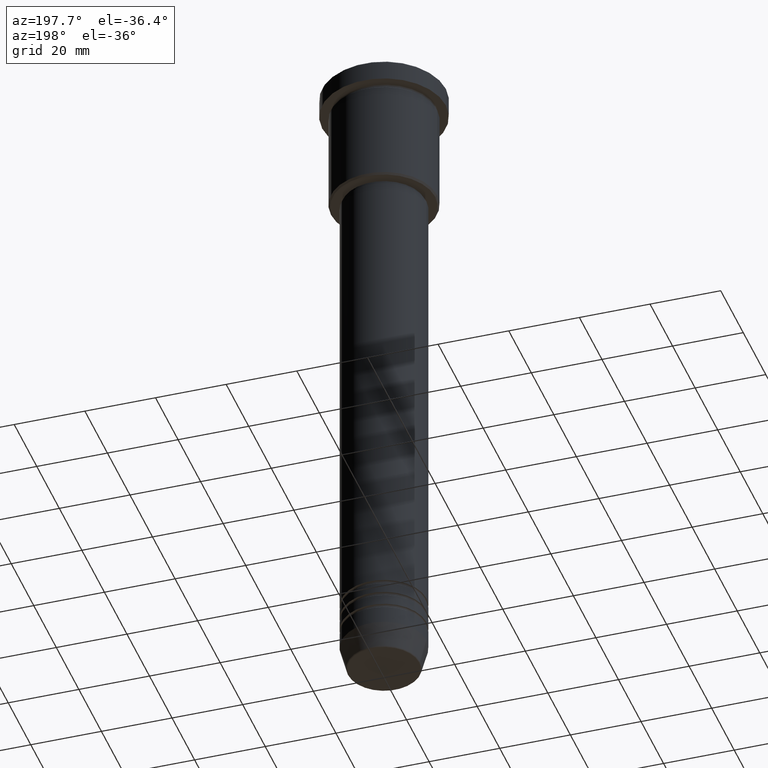
[diagram: clean part render]
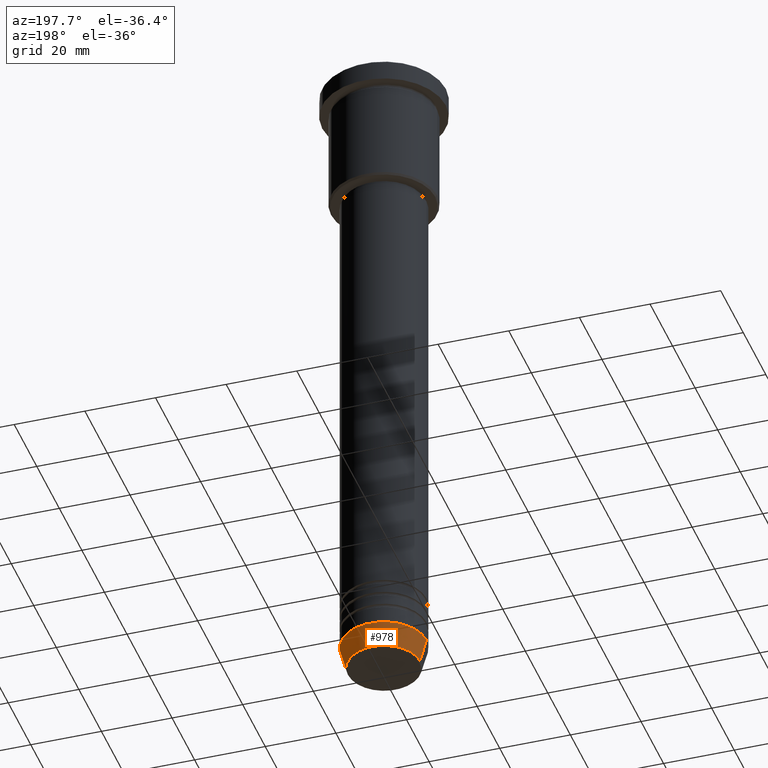
[diagram: same view with one face highlighted and labeled with its STEP entity id]
A machine part, auxiliary view. The second image highlights one B-rep face of the part: STEP entity #978.
In plain terms, the highlighted conical surface has half-angle 15 deg.
Its self-contained STEP definition (entity closure, byte-faithful):
#27 = DIRECTION ( 'NONE',  ( 1.000000000000000000, 0.000000000000000000, 0.000000000000000000 ) ) ;
#30 = CARTESIAN_POINT ( 'NONE',  ( 0.000000000000000000, 0.000000000000000000, -184.0000000000000000 ) ) ;
#31 = CARTESIAN_POINT ( 'NONE',  ( 10.22365507213719127, 0.000000000000000000, -190.6294095225512422 ) ) ;
#137 = DIRECTION ( 'NONE',  ( -0.000000000000000000, -0.000000000000000000, 1.000000000000000000 ) ) ;
#138 = CONICAL_SURFACE ( 'NONE', #652, 12.00000000000000000, 0.2617993877991500740 ) ;
#152 = VERTEX_POINT ( 'NONE', #753 ) ;
#158 = VECTOR ( 'NONE', #983, 1000.000000000000000 ) ;
#168 = EDGE_CURVE ( 'NONE', #1049, #925, #273, .T. ) ;
#169 = VERTEX_POINT ( 'NONE', #864 ) ;
#182 = AXIS2_PLACEMENT_3D ( 'NONE', #30, #1135, #231 ) ;
#202 = EDGE_CURVE ( 'NONE', #1049, #152, #416, .T. ) ;
#209 = AXIS2_PLACEMENT_3D ( 'NONE', #485, #137, #27 ) ;
#211 = CIRCLE ( 'NONE', #182, 12.00000000000000000 ) ;
#221 = DIRECTION ( 'NONE',  ( 1.000000000000000000, 0.000000000000000000, 0.000000000000000000 ) ) ;
#229 = ORIENTED_EDGE ( 'NONE', *, *, #168, .T. ) ;
#231 = DIRECTION ( 'NONE',  ( 1.000000000000000000, 0.000000000000000000, 0.000000000000000000 ) ) ;
#238 = EDGE_CURVE ( 'NONE', #925, #169, #520, .T. ) ;
#264 = ORIENTED_EDGE ( 'NONE', *, *, #238, .T. ) ;
#273 = CIRCLE ( 'NONE', #209, 10.22365507213719127 ) ;
#306 = CARTESIAN_POINT ( 'NONE',  ( 0.000000000000000000, 0.000000000000000000, -184.0000000000000000 ) ) ;
#416 = LINE ( 'NONE', #773, #910 ) ;
#435 = CARTESIAN_POINT ( 'NONE',  ( -12.00000000000000000, 1.469576158976823947E-15, -184.0000000000000000 ) ) ;
#485 = CARTESIAN_POINT ( 'NONE',  ( 0.000000000000000000, 0.000000000000000000, -190.6294095225512422 ) ) ;
#498 = EDGE_CURVE ( 'NONE', #152, #169, #211, .T. ) ;
#520 = LINE ( 'NONE', #435, #158 ) ;
#558 = CARTESIAN_POINT ( 'NONE',  ( -10.22365507213719127, 1.360806402472382744E-15, -190.6294095225512422 ) ) ;
#565 = FACE_OUTER_BOUND ( 'NONE', #858, .T. ) ;
#652 = AXIS2_PLACEMENT_3D ( 'NONE', #306, #664, #221 ) ;
#664 = DIRECTION ( 'NONE',  ( -0.000000000000000000, -0.000000000000000000, 1.000000000000000000 ) ) ;
#743 = ORIENTED_EDGE ( 'NONE', *, *, #202, .F. ) ;
#753 = CARTESIAN_POINT ( 'NONE',  ( 12.00000000000000000, 0.000000000000000000, -184.0000000000000000 ) ) ;
#773 = CARTESIAN_POINT ( 'NONE',  ( 12.00000000000000000, 0.000000000000000000, -184.0000000000000000 ) ) ;
#858 = EDGE_LOOP ( 'NONE', ( #229, #264, #979, #743 ) ) ;
#864 = CARTESIAN_POINT ( 'NONE',  ( -12.00000000000000000, 1.469576158976823947E-15, -184.0000000000000000 ) ) ;
#910 = VECTOR ( 'NONE', #1084, 1000.000000000000000 ) ;
#925 = VERTEX_POINT ( 'NONE', #558 ) ;
#978 = ADVANCED_FACE ( 'NONE', ( #565 ), #138, .T. ) ;
#979 = ORIENTED_EDGE ( 'NONE', *, *, #498, .F. ) ;
#983 = DIRECTION ( 'NONE',  ( -0.2588190451025213501, 3.169619151431772337E-17, 0.9659258262890680902 ) ) ;
#1049 = VERTEX_POINT ( 'NONE', #31 ) ;
#1084 = DIRECTION ( 'NONE',  ( 0.2588190451025213501, 0.000000000000000000, 0.9659258262890680902 ) ) ;
#1135 = DIRECTION ( 'NONE',  ( -0.000000000000000000, -0.000000000000000000, 1.000000000000000000 ) ) ;